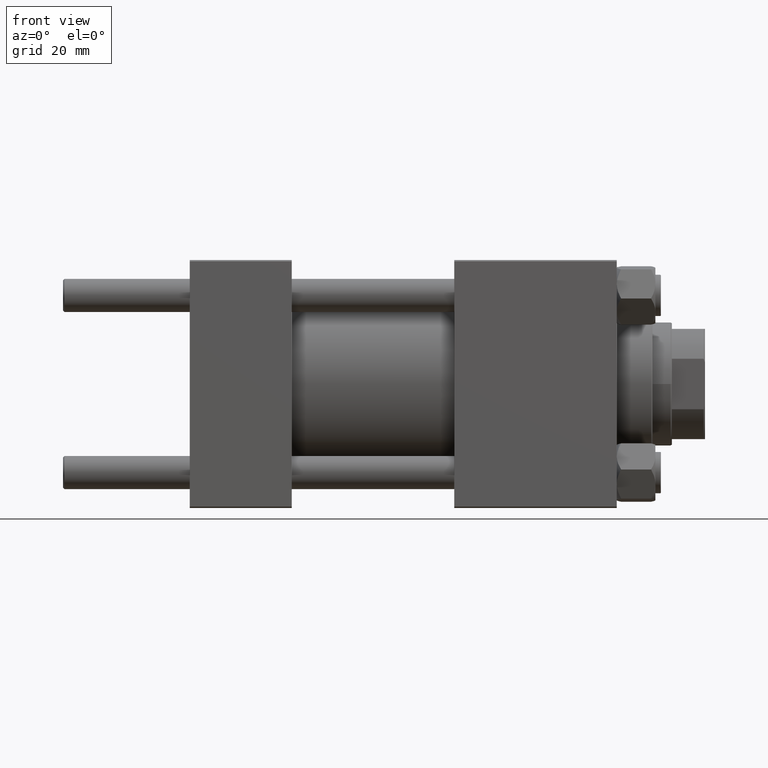
[diagram: clean part render]
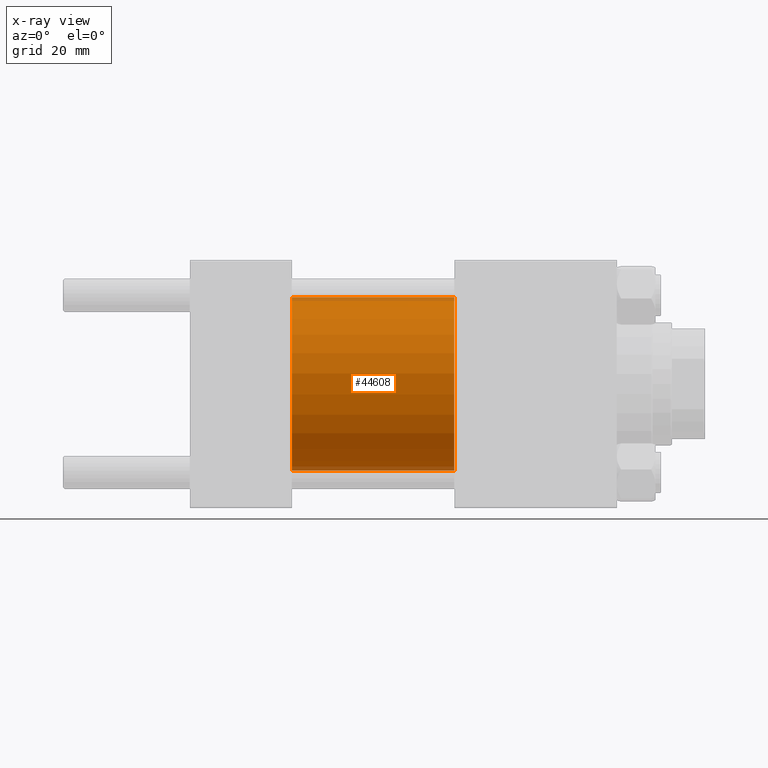
[diagram: x-ray — body ghosted, one internal face saturated and labeled with its STEP entity id]
A machine part, front view, then the same camera in x-ray: the body is ghosted and one INTERNAL B-rep face — a face not visible from any outside direction — is saturated and labeled: STEP entity #44608.
In plain terms, the highlighted cylindrical surface (partial cylindrical patch) has radius 31.5 mm, axis along (-1, -0, -0).
Its self-contained STEP definition (entity closure, byte-faithful):
#78 = LINE ( 'NONE', #27559, #22652 ) ;
#640 = ORIENTED_EDGE ( 'NONE', *, *, #46229, .F. ) ;
#703 = EDGE_CURVE ( 'NONE', #26716, #39010, #78, .T. ) ;
#1755 = CIRCLE ( 'NONE', #14617, 31.50000000000000000 ) ;
#4271 = CARTESIAN_POINT ( 'NONE',  ( 37.00000000000000000, 0.000000000000000000, 31.50000000000000000 ) ) ;
#4522 = VERTEX_POINT ( 'NONE', #4271 ) ;
#6187 = CARTESIAN_POINT ( 'NONE',  ( 37.00000000000000000, 0.000000000000000000, 0.000000000000000000 ) ) ;
#8569 = VERTEX_POINT ( 'NONE', #39724 ) ;
#9538 = ORIENTED_EDGE ( 'NONE', *, *, #10498, .F. ) ;
#10498 = EDGE_CURVE ( 'NONE', #8569, #4522, #27109, .T. ) ;
#11477 = DIRECTION ( 'NONE',  ( -1.000000000000000000, -0.000000000000000000, -0.000000000000000000 ) ) ;
#14617 = AXIS2_PLACEMENT_3D ( 'NONE', #6187, #21574, #40223 ) ;
#16511 = CARTESIAN_POINT ( 'NONE',  ( 37.00000000000000000, 3.857637417314162689E-15, -31.50000000000000000 ) ) ;
#16863 = CARTESIAN_POINT ( 'NONE',  ( 96.00000000000000000, 0.000000000000000000, 0.000000000000000000 ) ) ;
#19244 = DIRECTION ( 'NONE',  ( 0.000000000000000000, 0.000000000000000000, 1.000000000000000000 ) ) ;
#19612 = ORIENTED_EDGE ( 'NONE', *, *, #33150, .T. ) ;
#20768 = CIRCLE ( 'NONE', #34412, 31.50000000000000000 ) ;
#21574 = DIRECTION ( 'NONE',  ( 1.000000000000000000, 0.000000000000000000, 0.000000000000000000 ) ) ;
#22652 = VECTOR ( 'NONE', #42919, 1000.000000000000000 ) ;
#23288 = CARTESIAN_POINT ( 'NONE',  ( 96.00000000000000000, 0.000000000000000000, 0.000000000000000000 ) ) ;
#25410 = CARTESIAN_POINT ( 'NONE',  ( 96.00000000000000000, 3.857637417314162689E-15, -31.50000000000000000 ) ) ;
#26716 = VERTEX_POINT ( 'NONE', #25410 ) ;
#26860 = VECTOR ( 'NONE', #11477, 1000.000000000000000 ) ;
#27058 = FACE_OUTER_BOUND ( 'NONE', #47470, .T. ) ;
#27109 = LINE ( 'NONE', #42462, #26860 ) ;
#27559 = CARTESIAN_POINT ( 'NONE',  ( 96.00000000000000000, 3.857637417314162689E-15, -31.50000000000000000 ) ) ;
#31324 = CYLINDRICAL_SURFACE ( 'NONE', #36332, 31.50000000000000000 ) ;
#33150 = EDGE_CURVE ( 'NONE', #8569, #26716, #20768, .T. ) ;
#34412 = AXIS2_PLACEMENT_3D ( 'NONE', #16863, #36527, #36273 ) ;
#36273 = DIRECTION ( 'NONE',  ( 0.000000000000000000, 0.000000000000000000, -1.000000000000000000 ) ) ;
#36332 = AXIS2_PLACEMENT_3D ( 'NONE', #23288, #41912, #19244 ) ;
#36527 = DIRECTION ( 'NONE',  ( 1.000000000000000000, 0.000000000000000000, 0.000000000000000000 ) ) ;
#39010 = VERTEX_POINT ( 'NONE', #16511 ) ;
#39724 = CARTESIAN_POINT ( 'NONE',  ( 96.00000000000000000, 0.000000000000000000, 31.50000000000000000 ) ) ;
#40223 = DIRECTION ( 'NONE',  ( 0.000000000000000000, 0.000000000000000000, -1.000000000000000000 ) ) ;
#41912 = DIRECTION ( 'NONE',  ( -1.000000000000000000, -0.000000000000000000, -0.000000000000000000 ) ) ;
#42462 = CARTESIAN_POINT ( 'NONE',  ( 96.00000000000000000, 0.000000000000000000, 31.50000000000000000 ) ) ;
#42882 = ORIENTED_EDGE ( 'NONE', *, *, #703, .T. ) ;
#42919 = DIRECTION ( 'NONE',  ( -1.000000000000000000, -0.000000000000000000, -0.000000000000000000 ) ) ;
#44608 = ADVANCED_FACE ( 'NONE', ( #27058 ), #31324, .F. ) ;
#46229 = EDGE_CURVE ( 'NONE', #4522, #39010, #1755, .T. ) ;
#47470 = EDGE_LOOP ( 'NONE', ( #19612, #42882, #640, #9538 ) ) ;